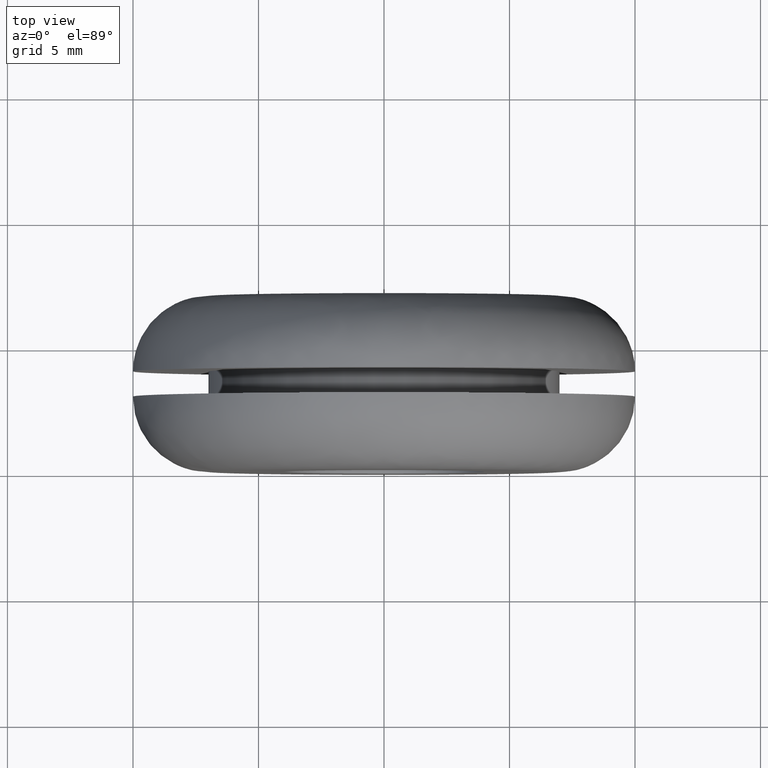
[diagram: clean part render]
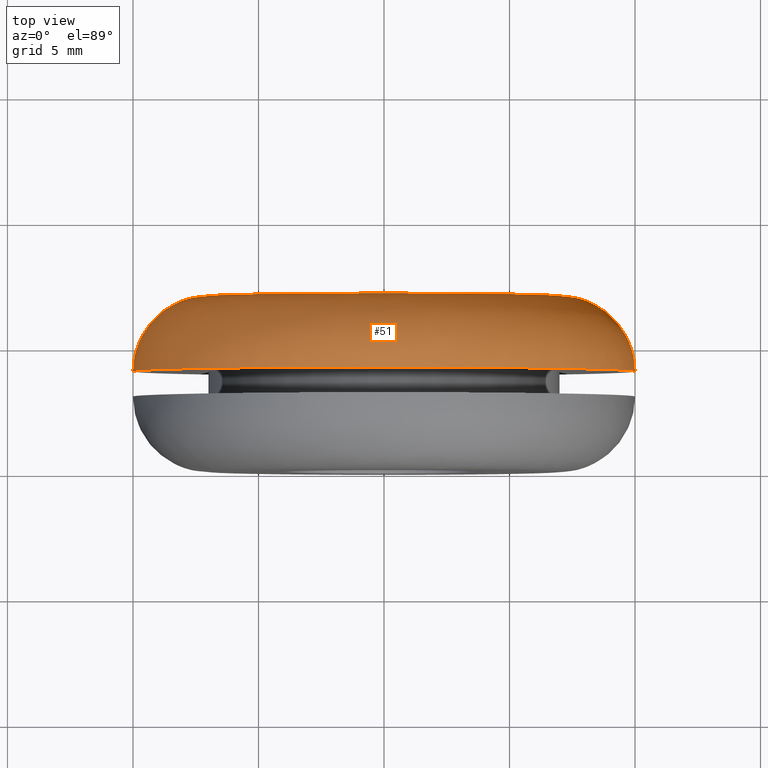
[diagram: same view with one face highlighted and labeled with its STEP entity id]
A machine part, top view. The second image highlights one B-rep face of the part: STEP entity #51.
In plain terms, the highlighted face is a freeform B-spline surface patch.
Its self-contained STEP definition (entity closure, byte-faithful):
#51=ADVANCED_FACE('',(#167),#166,.T.);
#166=( BOUNDED_SURFACE() B_SPLINE_SURFACE( 2,2,((#298,#299,#300,#301,#302),(#303,#304,#305,#306,#307),(#308,#309,#310,#311,#312),(#313,#314,#315,#316,#317),(#318,#319,#320,#321,#322)), .UNSPECIFIED.,.F.,.F.,.F.) B_SPLINE_SURFACE_WITH_KNOTS((3,2,3),(3,2,3),(0.00000000000E+000,5.00000000000E-001,1.00000000000E+000),(0.00000000000E+000,5.00000000000E-001,1.00000000000E+000), .UNSPECIFIED. ) GEOMETRIC_REPRESENTATION_ITEM() RATIONAL_B_SPLINE_SURFACE(((1.00000000000E+000,7.07106780997E-001,1.00000000000E+000,7.07106780997E-001,1.00000000000E+000),(7.07106781187E-001,4.99999999866E-001,7.07106781187E-001,4.99999999866E-001,7.07106781187E-001),(1.00000000000E+000,7.07106780997E-001,1.00000000000E+000,7.07106780997E-001,1.00000000000E+000),(7.07106781187E-001,4.99999999866E-001,7.07106781187E-001,4.99999999866E-001,7.07106781187E-001),(1.00000000000E+000,7.07106780997E-001,1.00000000000E+000,7.07106780997E-001,1.00000000000E+000))) REPRESENTATION_ITEM('') SURFACE() );
#167=FACE_OUTER_BOUND('',#323,.T.);
#298=CARTESIAN_POINT('',(4.00000000000E+000,3.99999999678E+000,3.23905382932E-013));
#299=CARTESIAN_POINT('',(3.99999999678E+000,6.99999999839E+000,2.49788622533E-013));
#300=CARTESIAN_POINT('',(6.99999999839E+000,7.00000000000E+000,2.49788610360E-013));
#301=CARTESIAN_POINT('',(1.00000000000E+001,7.00000000161E+000,2.49788598186E-013));
#302=CARTESIAN_POINT('',(1.00000000000E+001,4.00000000000E+000,3.23905358585E-013));
#303=CARTESIAN_POINT('',(4.00000000000E+000,3.99999999678E+000,4.00000000001E+000));
#304=CARTESIAN_POINT('',(3.99999999678E+000,6.99999999839E+000,3.99999999678E+000));
#305=CARTESIAN_POINT('',(6.99999999839E+000,7.00000000000E+000,6.99999999840E+000));
#306=CARTESIAN_POINT('',(1.00000000000E+001,7.00000000161E+000,1.00000000000E+001));
#307=CARTESIAN_POINT('',(1.00000000000E+001,4.00000000000E+000,1.00000000000E+001));
#308=CARTESIAN_POINT('',(-8.02198377088E-012,3.99999999678E+000,4.00000000001E+000));
#309=CARTESIAN_POINT('',(-6.38576298120E-012,6.99999999839E+000,3.99999999678E+000));
#310=CARTESIAN_POINT('',(-6.38557927117E-012,7.00000000000E+000,6.99999999840E+000));
#311=CARTESIAN_POINT('',(-6.38539556113E-012,7.00000000162E+000,1.00000000000E+001));
#312=CARTESIAN_POINT('',(-8.02161635081E-012,4.00000000000E+000,1.00000000000E+001));
#313=CARTESIAN_POINT('',(-4.00000000002E+000,3.99999999678E+000,4.00000000001E+000));
#314=CARTESIAN_POINT('',(-3.99999999679E+000,6.99999999839E+000,3.99999999678E+000));
#315=CARTESIAN_POINT('',(-6.99999999840E+000,7.00000000001E+000,6.99999999840E+000));
#316=CARTESIAN_POINT('',(-1.00000000000E+001,7.00000000162E+000,1.00000000000E+001));
#317=CARTESIAN_POINT('',(-1.00000000000E+001,4.00000000001E+000,1.00000000000E+001));
#318=CARTESIAN_POINT('',(-4.00000000002E+000,3.99999999678E+000,3.24395274007E-013));
#319=CARTESIAN_POINT('',(-3.99999999679E+000,6.99999999839E+000,2.50278513609E-013));
#320=CARTESIAN_POINT('',(-6.99999999840E+000,7.00000000001E+000,2.50645919742E-013));
#321=CARTESIAN_POINT('',(-1.00000000000E+001,7.00000000162E+000,2.51013325876E-013));
#322=CARTESIAN_POINT('',(-1.00000000000E+001,4.00000000001E+000,3.25130086275E-013));
#323=EDGE_LOOP('',(#394,#395,#396,#397,#398,#399));
#394=ORIENTED_EDGE('',*,*,#410,.T.);
#395=ORIENTED_EDGE('',*,*,#436,.T.);
#396=ORIENTED_EDGE('',*,*,#404,.F.);
#397=ORIENTED_EDGE('',*,*,#403,.F.);
#398=ORIENTED_EDGE('',*,*,#402,.F.);
#399=ORIENTED_EDGE('',*,*,#437,.F.);
#402=EDGE_CURVE('',#446,#453,#454,.T.);
#403=EDGE_CURVE('',#453,#460,#461,.T.);
#404=EDGE_CURVE('',#460,#467,#468,.T.);
#410=EDGE_CURVE('',#509,#501,#510,.T.);
#436=EDGE_CURVE('',#501,#467,#684,.T.);
#437=EDGE_CURVE('',#509,#446,#690,.T.);
#446=VERTEX_POINT('',#702);
#453=VERTEX_POINT('',#707);
#454=CIRCLE('',#711,1.00000000000E+001);
#460=VERTEX_POINT('',#712);
#461=CIRCLE('',#716,1.00000000000E+001);
#467=VERTEX_POINT('',#717);
#468=CIRCLE('',#721,1.00000000000E+001);
#501=VERTEX_POINT('',#741);
#509=VERTEX_POINT('',#747);
#510=CIRCLE('',#751,7.00000000011E+000);
#684=(BOUNDED_CURVE() B_SPLINE_CURVE(2,(#862,#863,#864),.UNSPECIFIED.,.F.,.F.) B_SPLINE_CURVE_WITH_KNOTS((3,3),(5.00000000000E-001,1.00000000000E+000),.UNSPECIFIED.) CURVE() GEOMETRIC_REPRESENTATION_ITEM() RATIONAL_B_SPLINE_CURVE((1.00000000000E+000,7.07106780997E-001,1.00000000000E+000)) REPRESENTATION_ITEM('') );
#690=(BOUNDED_CURVE() B_SPLINE_CURVE(3,(#865,#866,#867,#868,#869),.UNSPECIFIED.,.F.,.F.) B_SPLINE_CURVE_WITH_KNOTS((4,1,4),(4.99999699749E-001,7.49999827100E-001,1.00000000000E+000),.UNSPECIFIED.) CURVE() GEOMETRIC_REPRESENTATION_ITEM() RATIONAL_B_SPLINE_CURVE((1.00000000000E+000,1.00000000000E+000,1.00000000000E+000,1.00000000000E+000,1.00000000000E+000)) REPRESENTATION_ITEM('') );
#702=CARTESIAN_POINT('',(9.99999999304E+000,3.99999999998E+000,3.73214900256E-004));
#707=CARTESIAN_POINT('',(0.00000000000E+000,4.00000000000E+000,1.00000000000E+001));
#708=CARTESIAN_POINT('',(5.32907051820E-015,4.00000000003E+000,7.99360577730E-015));
#709=DIRECTION('',(-5.29288276948E-012,-1.00000000000E+000,-5.86217477565E-011));
#710=DIRECTION('',(-9.97565673832E-001,1.19211307492E-012,6.97332517021E-002));
#711=AXIS2_PLACEMENT_3D('',#708,#709,#710);
#712=CARTESIAN_POINT('',(-9.99921044204E+000,4.00000000002E+000,1.25660398839E-001));
#713=CARTESIAN_POINT('',(2.74003042477E-012,4.00000000002E+000,-2.77289302630E-012));
#714=DIRECTION('',(-9.18354961580E-041,-1.00000000000E+000,-2.07140971042E-012));
#715=DIRECTION('',(2.74003042477E-013,2.07140971042E-012,-1.00000000000E+000));
#716=AXIS2_PLACEMENT_3D('',#713,#714,#715);
#717=CARTESIAN_POINT('',(-1.00000000000E+001,3.99999999998E+000,3.22072480326E-013));
#718=CARTESIAN_POINT('',(-1.24344978758E-014,4.00000000003E+000,-1.33226762955E-014));
#719=DIRECTION('',(5.48787079013E-012,-1.00000000000E+000,3.25471571419E-010));
#720=DIRECTION('',(9.99921044204E-001,1.39754874340E-012,-1.25660398839E-002));
#721=AXIS2_PLACEMENT_3D('',#718,#719,#720);
#741=CARTESIAN_POINT('',(-7.00000000016E+000,7.00000000000E+000,2.46670933393E-013));
#747=CARTESIAN_POINT('',(6.99999996236E+000,7.00000000000E+000,7.26521373382E-004));
#748=CARTESIAN_POINT('',(-4.86592988125E-011,7.00000000000E+000,-1.11080034060E-010));
#749=DIRECTION('',(-2.87796114870E-016,-1.00000000000E+000,-4.11705346929E-015));
#750=DIRECTION('',(6.95160595754E-012,4.11705346929E-015,-1.00000000000E+000));
#751=AXIS2_PLACEMENT_3D('',#748,#749,#750);
#862=CARTESIAN_POINT('',(-6.99999999840E+000,7.00000000001E+000,2.48931414224E-013));
#863=CARTESIAN_POINT('',(-1.00000000000E+001,7.00000000162E+000,2.48564032278E-013));
#864=CARTESIAN_POINT('',(-1.00000000000E+001,4.00000000001E+000,3.22680792676E-013));
#865=CARTESIAN_POINT('',(6.99999745067E+000,7.00000000000E+000,2.50466314280E-013));
#866=CARTESIAN_POINT('',(7.77834910816E+000,7.00667285034E+000,2.50497541497E-013));
#867=CARTESIAN_POINT('',(9.35012812626E+000,6.35013026811E+000,2.66923858063E-013));
#868=CARTESIAN_POINT('',(1.00066721961E+001,4.77835180516E+000,3.05473838538E-013));
#869=CARTESIAN_POINT('',(1.00000000000E+001,4.00000000000E+000,3.24481182664E-013));